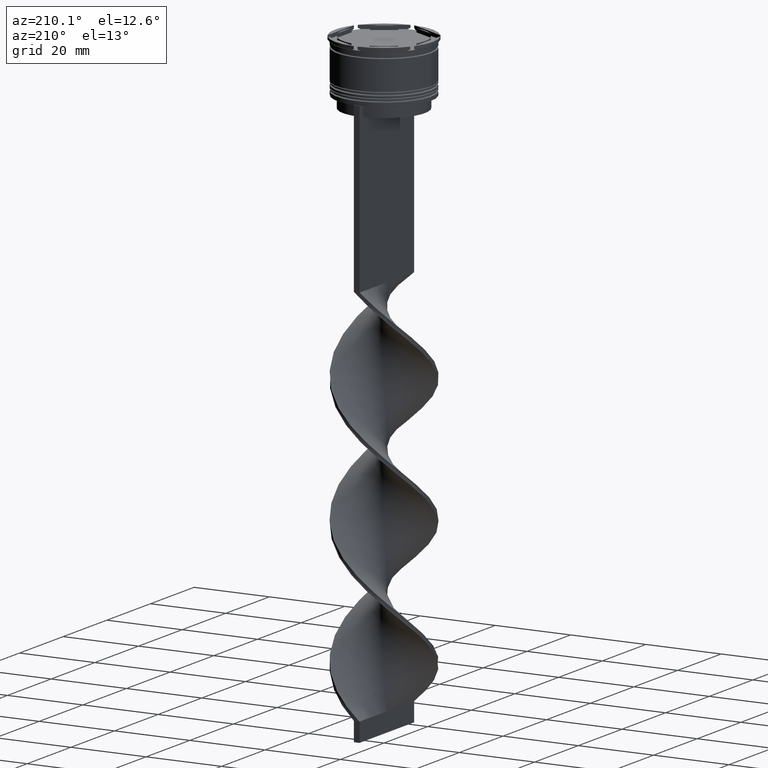
[diagram: clean part render]
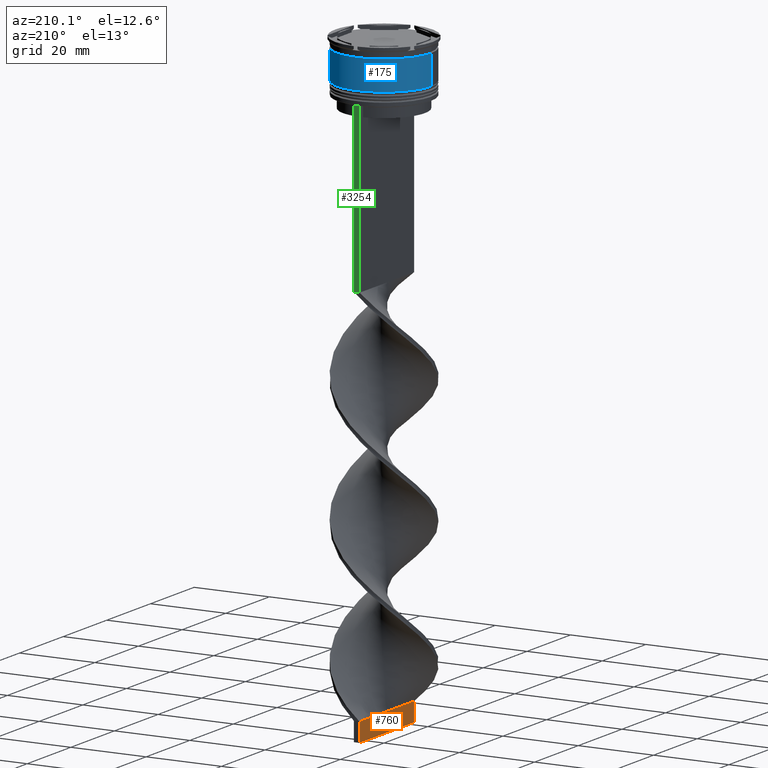
[diagram: same view with three faces highlighted in distinct colors, each labeled with its STEP entity id]
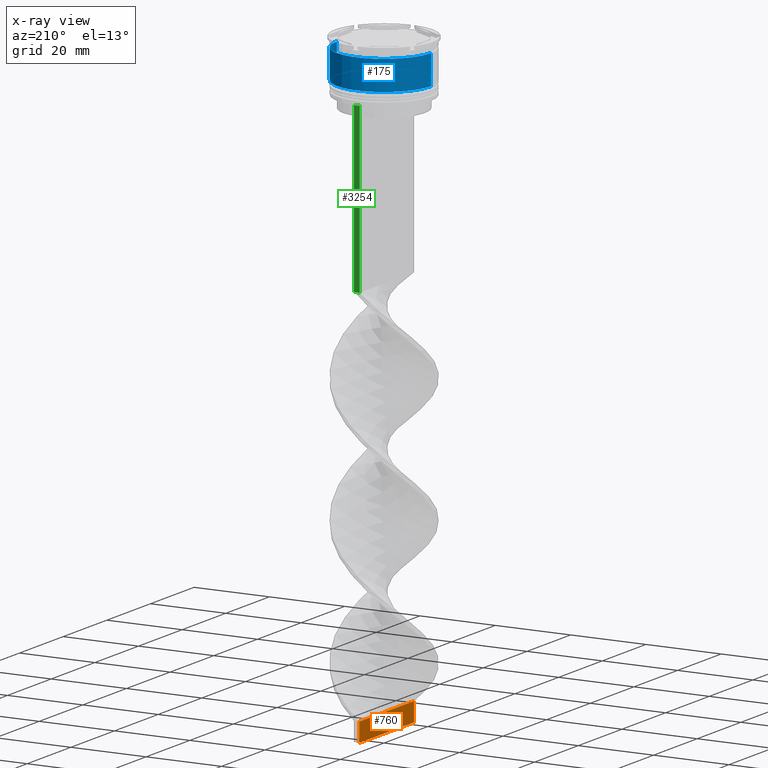
[diagram: x-ray of the same camera — body ghosted, the three highlighted faces saturated]
A machine part, auxiliary view with three faces highlighted in distinct colors.
The next image is the same camera in x-ray (body ghosted, the three faces saturated) — at least one of them is partly hidden behind the body in this view.
Their STEP definitions:

[orange] entity #760 — the highlighted planar face has unit normal (1, -0, 0).
#4 = DIRECTION ( 'NONE',  ( 1.000000000000000000, -1.214306433183764966E-16, 0.000000000000000000 ) ) ;
#28 = DIRECTION ( 'NONE',  ( 1.214306433183764966E-16, 1.000000000000000000, 0.000000000000000000 ) ) ;
#37 = DIRECTION ( 'NONE',  ( -0.000000000000000000, -0.000000000000000000, 1.000000000000000000 ) ) ;
#102 = ORIENTED_EDGE ( 'NONE', *, *, #254, .T. ) ;
#167 = VERTEX_POINT ( 'NONE', #4103 ) ;
#254 = EDGE_CURVE ( 'NONE', #167, #1107, #2933, .T. ) ;
#337 = FACE_OUTER_BOUND ( 'NONE', #2883, .T. ) ;
#367 = CARTESIAN_POINT ( 'NONE',  ( -0.7499999999999986677, 12.50000000000000000, -164.0000000000000000 ) ) ;
#370 = CARTESIAN_POINT ( 'NONE',  ( -0.7500000000000007772, -4.166666666666667851, -159.0000000000000000 ) ) ;
#372 = VECTOR ( 'NONE', #37, 1000.000000000000000 ) ;
#760 = ADVANCED_FACE ( 'NONE', ( #337 ), #2670, .F. ) ;
#1107 = VERTEX_POINT ( 'NONE', #1825 ) ;
#1339 = ORIENTED_EDGE ( 'NONE', *, *, #2831, .F. ) ;
#1358 = DIRECTION ( 'NONE',  ( 1.214306433183764966E-16, 1.000000000000000000, 0.000000000000000000 ) ) ;
#1363 = CARTESIAN_POINT ( 'NONE',  ( -0.7499999999999986677, 12.50000000000000000, -159.0000000000000000 ) ) ;
#1447 = ORIENTED_EDGE ( 'NONE', *, *, #2627, .T. ) ;
#1474 = ORIENTED_EDGE ( 'NONE', *, *, #2766, .F. ) ;
#1605 = CARTESIAN_POINT ( 'NONE',  ( -0.7500000000000017764, -12.50000000000000000, -164.0000000000000000 ) ) ;
#1825 = CARTESIAN_POINT ( 'NONE',  ( -0.7499999999999986677, 12.50000000000000000, -159.0000000000000000 ) ) ;
#2154 = CARTESIAN_POINT ( 'NONE',  ( -0.7499999999999986677, 12.50000000000000000, -164.0000000000000000 ) ) ;
#2284 = CARTESIAN_POINT ( 'NONE',  ( -0.7500000000000017764, -12.50000000000000000, -164.0000000000000000 ) ) ;
#2568 = CARTESIAN_POINT ( 'NONE',  ( -0.7500000000000017764, -12.50000000000000000, -164.0000000000000000 ) ) ;
#2627 = EDGE_CURVE ( 'NONE', #3942, #167, #2919, .T. ) ;
#2670 = PLANE ( 'NONE',  #3437 ) ;
#2766 = EDGE_CURVE ( 'NONE', #3942, #3318, #3630, .T. ) ;
#2831 = EDGE_CURVE ( 'NONE', #3318, #1107, #3564, .T. ) ;
#2883 = EDGE_LOOP ( 'NONE', ( #102, #1339, #1474, #1447 ) ) ;
#2919 = LINE ( 'NONE', #2568, #372 ) ;
#2933 = B_SPLINE_CURVE_WITH_KNOTS ( 'NONE', 3,
 ( #3902, #370, #3882, #1363 ),
 .UNSPECIFIED., .F., .F.,
 ( 4, 4 ),
 ( 0.000000000000000000, 1.000000000000000000 ),
 .UNSPECIFIED. ) ;
#2943 = DIRECTION ( 'NONE',  ( -0.000000000000000000, -0.000000000000000000, 1.000000000000000000 ) ) ;
#2985 = CARTESIAN_POINT ( 'NONE',  ( -0.7500000000000017764, -12.50000000000000000, -164.0000000000000000 ) ) ;
#3002 = VECTOR ( 'NONE', #2943, 1000.000000000000000 ) ;
#3318 = VERTEX_POINT ( 'NONE', #2154 ) ;
#3437 = AXIS2_PLACEMENT_3D ( 'NONE', #2284, #4, #28 ) ;
#3564 = LINE ( 'NONE', #367, #3002 ) ;
#3630 = LINE ( 'NONE', #2985, #3666 ) ;
#3666 = VECTOR ( 'NONE', #1358, 1000.000000000000000 ) ;
#3882 = CARTESIAN_POINT ( 'NONE',  ( -0.7499999999999996669, 4.166666666666667851, -159.0000000000000000 ) ) ;
#3902 = CARTESIAN_POINT ( 'NONE',  ( -0.7500000000000017764, -12.50000000000000000, -159.0000000000000000 ) ) ;
#3942 = VERTEX_POINT ( 'NONE', #1605 ) ;
#4103 = CARTESIAN_POINT ( 'NONE',  ( -0.7500000000000017764, -12.50000000000000000, -159.0000000000000000 ) ) ;

[blue] entity #175 — the highlighted cylindrical surface (partial cylindrical patch) has radius 12.5 mm, axis along (-0, -0, 1).
#157 = AXIS2_PLACEMENT_3D ( 'NONE', #1610, #287, #2277 ) ;
#175 = ADVANCED_FACE ( 'NONE', ( #1299 ), #1235, .T. ) ;
#195 = CARTESIAN_POINT ( 'NONE',  ( -12.49999999999999822, 1.530808498934191324E-15, -2.699999999999999289 ) ) ;
#287 = DIRECTION ( 'NONE',  ( -0.000000000000000000, -0.000000000000000000, 1.000000000000000000 ) ) ;
#306 = ORIENTED_EDGE ( 'NONE', *, *, #2399, .F. ) ;
#379 = DIRECTION ( 'NONE',  ( -0.000000000000000000, -0.000000000000000000, 1.000000000000000000 ) ) ;
#381 = LINE ( 'NONE', #743, #1910 ) ;
#581 = EDGE_CURVE ( 'NONE', #2126, #1454, #1268, .T. ) ;
#743 = CARTESIAN_POINT ( 'NONE',  ( 12.50000000000000000, 0.000000000000000000, 0.000000000000000000 ) ) ;
#893 = CIRCLE ( 'NONE', #2984, 12.50000000000000178 ) ;
#894 = EDGE_CURVE ( 'NONE', #1653, #2126, #893, .T. ) ;
#1049 = CIRCLE ( 'NONE', #3398, 12.49999999999999822 ) ;
#1235 = CYLINDRICAL_SURFACE ( 'NONE', #157, 12.50000000000000000 ) ;
#1262 = CARTESIAN_POINT ( 'NONE',  ( 0.000000000000000000, 0.000000000000000000, -2.699999999999999289 ) ) ;
#1268 = LINE ( 'NONE', #2878, #1291 ) ;
#1291 = VECTOR ( 'NONE', #2564, 1000.000000000000000 ) ;
#1299 = FACE_OUTER_BOUND ( 'NONE', #2466, .T. ) ;
#1454 = VERTEX_POINT ( 'NONE', #195 ) ;
#1466 = CARTESIAN_POINT ( 'NONE',  ( -12.50000000000000355, 1.530808498934191916E-15, -10.50000000000000178 ) ) ;
#1610 = CARTESIAN_POINT ( 'NONE',  ( 0.000000000000000000, 0.000000000000000000, 0.000000000000000000 ) ) ;
#1653 = VERTEX_POINT ( 'NONE', #2230 ) ;
#1805 = VERTEX_POINT ( 'NONE', #2407 ) ;
#1828 = DIRECTION ( 'NONE',  ( -0.000000000000000000, -0.000000000000000000, 1.000000000000000000 ) ) ;
#1908 = DIRECTION ( 'NONE',  ( 1.000000000000000000, 0.000000000000000000, 0.000000000000000000 ) ) ;
#1910 = VECTOR ( 'NONE', #2648, 1000.000000000000000 ) ;
#2007 = DIRECTION ( 'NONE',  ( 1.000000000000000000, 0.000000000000000000, 0.000000000000000000 ) ) ;
#2084 = ORIENTED_EDGE ( 'NONE', *, *, #894, .T. ) ;
#2126 = VERTEX_POINT ( 'NONE', #1466 ) ;
#2230 = CARTESIAN_POINT ( 'NONE',  ( 12.50000000000000178, 0.000000000000000000, -10.50000000000000178 ) ) ;
#2277 = DIRECTION ( 'NONE',  ( 1.000000000000000000, 0.000000000000000000, 0.000000000000000000 ) ) ;
#2399 = EDGE_CURVE ( 'NONE', #1653, #1805, #381, .T. ) ;
#2407 = CARTESIAN_POINT ( 'NONE',  ( 12.49999999999999822, 0.000000000000000000, -2.699999999999999289 ) ) ;
#2466 = EDGE_LOOP ( 'NONE', ( #2084, #3924, #3147, #306 ) ) ;
#2564 = DIRECTION ( 'NONE',  ( -0.000000000000000000, -0.000000000000000000, 1.000000000000000000 ) ) ;
#2626 = CARTESIAN_POINT ( 'NONE',  ( 0.000000000000000000, 0.000000000000000000, -10.50000000000000178 ) ) ;
#2648 = DIRECTION ( 'NONE',  ( -0.000000000000000000, -0.000000000000000000, 1.000000000000000000 ) ) ;
#2878 = CARTESIAN_POINT ( 'NONE',  ( -12.50000000000000000, 1.530808498934191521E-15, 0.000000000000000000 ) ) ;
#2984 = AXIS2_PLACEMENT_3D ( 'NONE', #2626, #379, #2007 ) ;
#3147 = ORIENTED_EDGE ( 'NONE', *, *, #3419, .F. ) ;
#3398 = AXIS2_PLACEMENT_3D ( 'NONE', #1262, #1828, #1908 ) ;
#3419 = EDGE_CURVE ( 'NONE', #1805, #1454, #1049, .T. ) ;
#3924 = ORIENTED_EDGE ( 'NONE', *, *, #581, .T. ) ;

[green] entity #3254 — the highlighted planar face has unit normal (0, -1, -0).
#117 = VECTOR ( 'NONE', #2838, 1000.000000000000000 ) ;
#314 = EDGE_CURVE ( 'NONE', #3360, #1861, #1343, .T. ) ;
#605 = ORIENTED_EDGE ( 'NONE', *, *, #3608, .T. ) ;
#833 = ORIENTED_EDGE ( 'NONE', *, *, #314, .T. ) ;
#865 = FACE_OUTER_BOUND ( 'NONE', #1726, .T. ) ;
#915 = VECTOR ( 'NONE', #2773, 1000.000000000000000 ) ;
#1023 = DIRECTION ( 'NONE',  ( -1.000000000000000000, 0.000000000000000000, 0.000000000000000000 ) ) ;
#1122 = DIRECTION ( 'NONE',  ( 0.000000000000000000, -1.000000000000000000, -0.000000000000000000 ) ) ;
#1139 = LINE ( 'NONE', #3391, #915 ) ;
#1343 = LINE ( 'NONE', #2641, #2111 ) ;
#1405 = ORIENTED_EDGE ( 'NONE', *, *, #2598, .F. ) ;
#1429 = CARTESIAN_POINT ( 'NONE',  ( -0.7499999999999997780, 12.50000000000000000, -58.00000000000000000 ) ) ;
#1550 = ORIENTED_EDGE ( 'NONE', *, *, #3280, .T. ) ;
#1726 = EDGE_LOOP ( 'NONE', ( #1405, #1550, #605, #833 ) ) ;
#1861 = VERTEX_POINT ( 'NONE', #1429 ) ;
#1896 = CARTESIAN_POINT ( 'NONE',  ( 0.7500000000000002220, 12.50000000000000000, 11.04495957273638673 ) ) ;
#2111 = VECTOR ( 'NONE', #1023, 1000.000000000000000 ) ;
#2128 = VECTOR ( 'NONE', #3812, 1000.000000000000000 ) ;
#2160 = LINE ( 'NONE', #1896, #117 ) ;
#2552 = CARTESIAN_POINT ( 'NONE',  ( 0.7500000000000002220, 12.50000000000000000, -14.00000000000000178 ) ) ;
#2565 = CARTESIAN_POINT ( 'NONE',  ( -0.7499999999999997780, 12.50000000000000000, -14.00000000000000178 ) ) ;
#2598 = EDGE_CURVE ( 'NONE', #3752, #1861, #3184, .T. ) ;
#2637 = VERTEX_POINT ( 'NONE', #2552 ) ;
#2641 = CARTESIAN_POINT ( 'NONE',  ( 0.7500000000000002220, 12.50000000000000000, -58.00000000000000000 ) ) ;
#2773 = DIRECTION ( 'NONE',  ( 1.000000000000000000, 0.000000000000000000, 0.000000000000000000 ) ) ;
#2838 = DIRECTION ( 'NONE',  ( 0.000000000000000000, 0.000000000000000000, -1.000000000000000000 ) ) ;
#2882 = CARTESIAN_POINT ( 'NONE',  ( -0.7499999999999997780, 12.50000000000000000, 11.04495957273638673 ) ) ;
#2891 = CARTESIAN_POINT ( 'NONE',  ( 0.7500000000000002220, 12.50000000000000000, -58.00000000000000000 ) ) ;
#3063 = PLANE ( 'NONE',  #3072 ) ;
#3072 = AXIS2_PLACEMENT_3D ( 'NONE', #4052, #1122, #3665 ) ;
#3184 = LINE ( 'NONE', #2882, #2128 ) ;
#3254 = ADVANCED_FACE ( 'NONE', ( #865 ), #3063, .F. ) ;
#3280 = EDGE_CURVE ( 'NONE', #3752, #2637, #1139, .T. ) ;
#3360 = VERTEX_POINT ( 'NONE', #2891 ) ;
#3391 = CARTESIAN_POINT ( 'NONE',  ( 0.7500000000000002220, 12.50000000000000000, -14.00000000000000178 ) ) ;
#3608 = EDGE_CURVE ( 'NONE', #2637, #3360, #2160, .T. ) ;
#3665 = DIRECTION ( 'NONE',  ( 0.000000000000000000, 0.000000000000000000, -1.000000000000000000 ) ) ;
#3752 = VERTEX_POINT ( 'NONE', #2565 ) ;
#3812 = DIRECTION ( 'NONE',  ( 0.000000000000000000, 0.000000000000000000, -1.000000000000000000 ) ) ;
#4052 = CARTESIAN_POINT ( 'NONE',  ( 0.7500000000000002220, 12.50000000000000000, 11.04495957273638673 ) ) ;